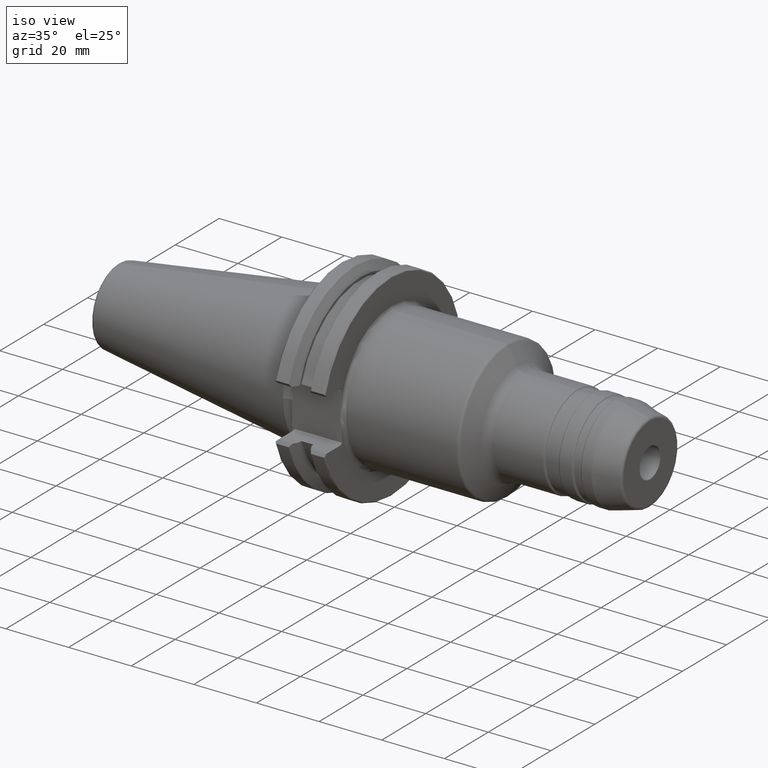
[diagram: clean part render]
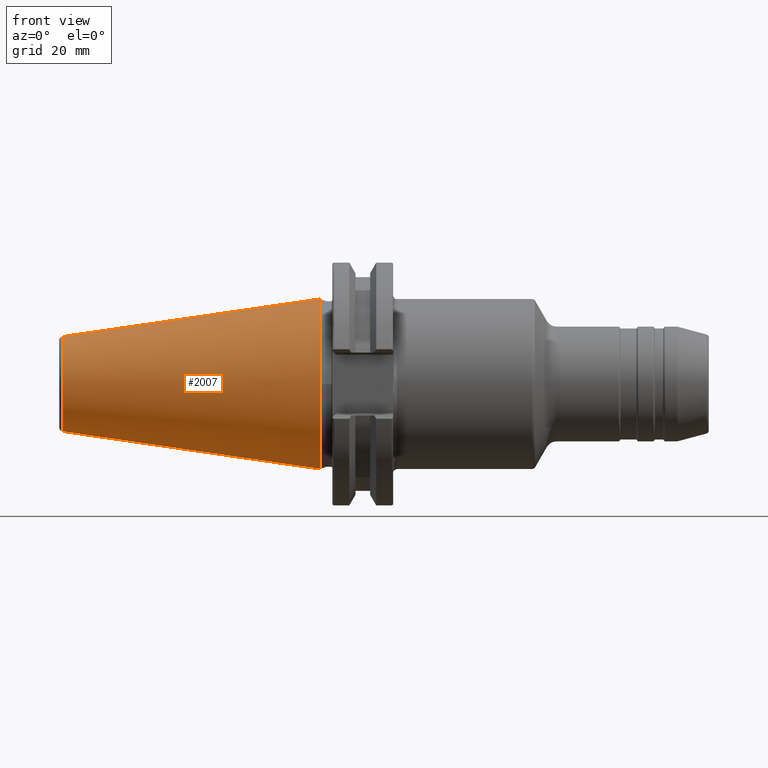
[diagram: tour spotlight — one face highlighted and labeled with its STEP entity id]
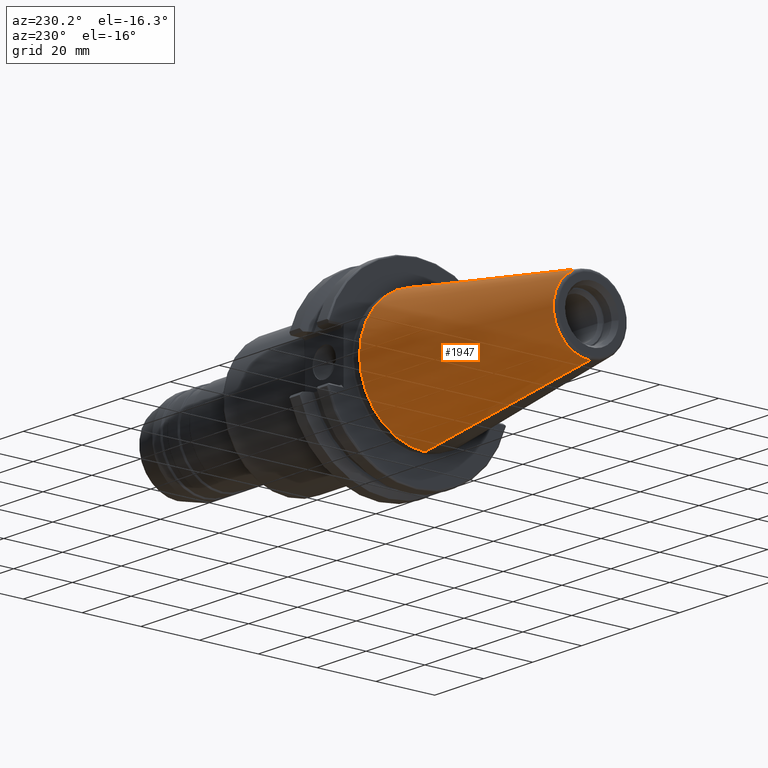
[diagram: tour spotlight — one face highlighted and labeled with its STEP entity id]
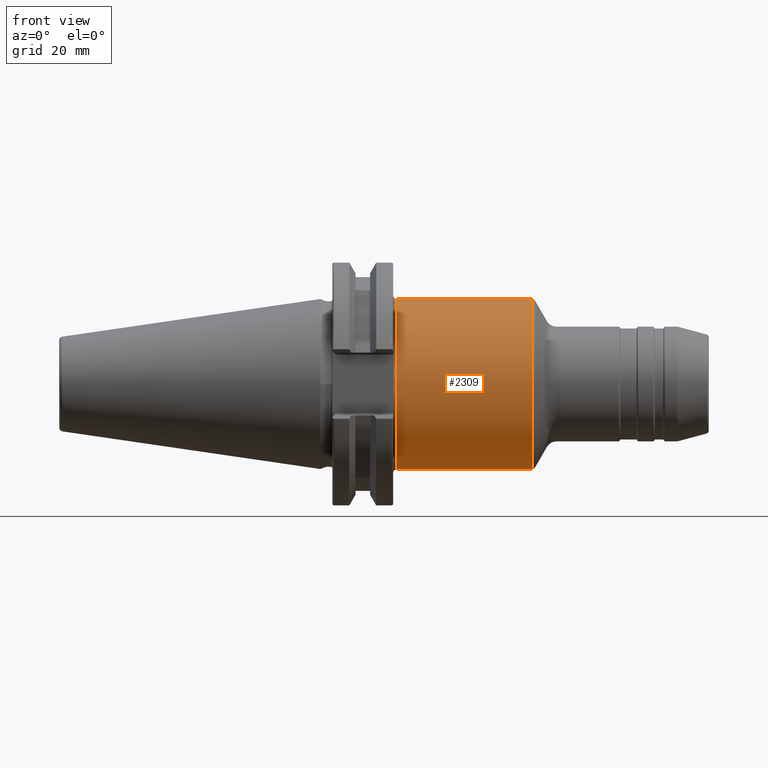
[diagram: tour spotlight — one face highlighted and labeled with its STEP entity id]
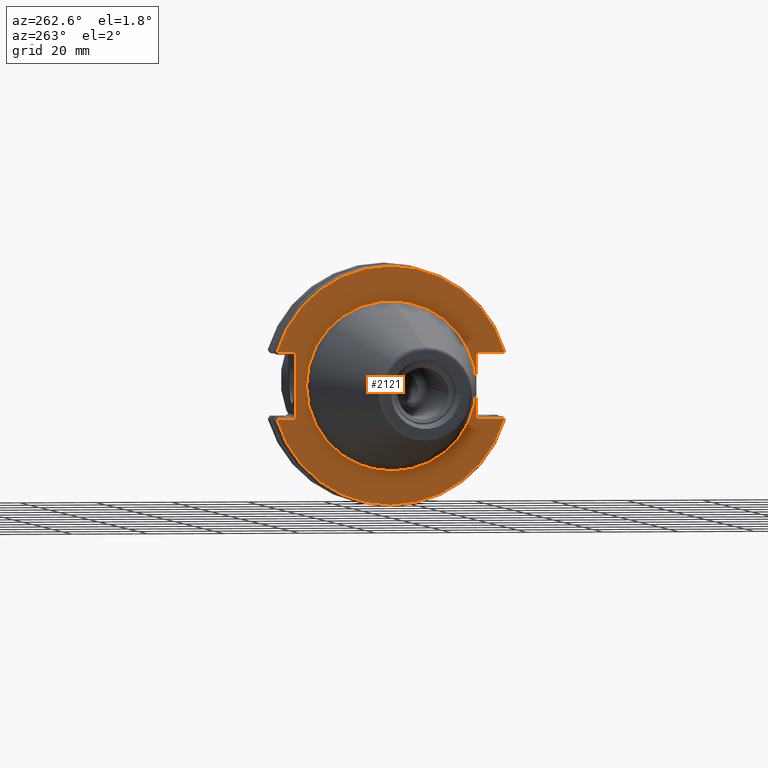
[diagram: tour spotlight — one face highlighted and labeled with its STEP entity id]
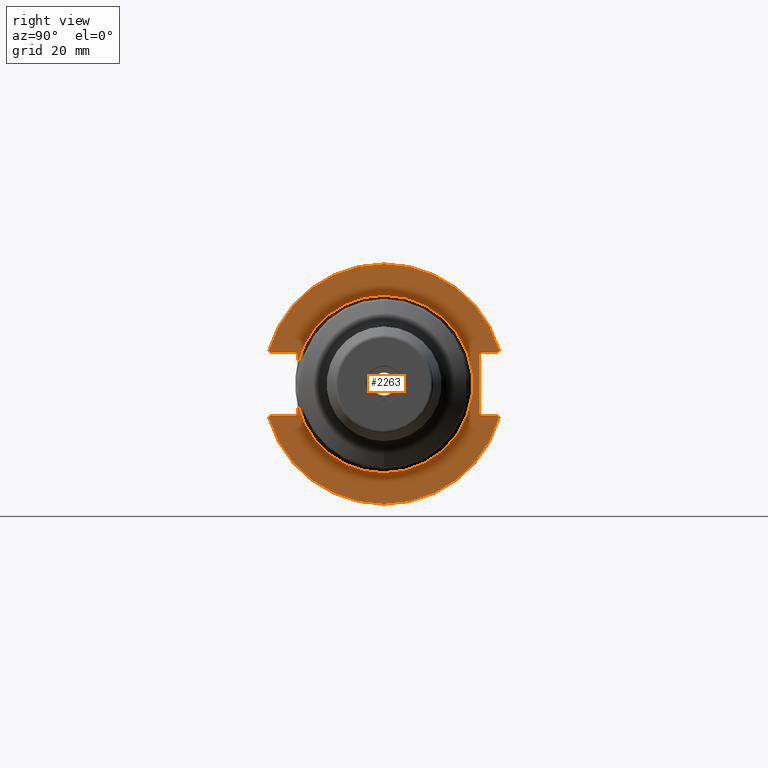
[diagram: tour spotlight — one face highlighted and labeled with its STEP entity id]
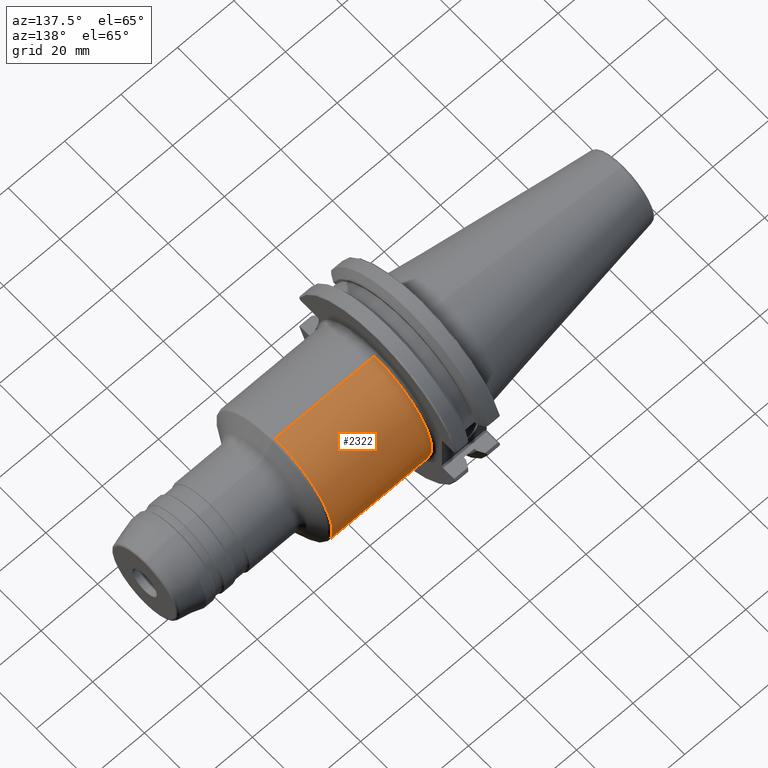
[diagram: tour spotlight — one face highlighted and labeled with its STEP entity id]
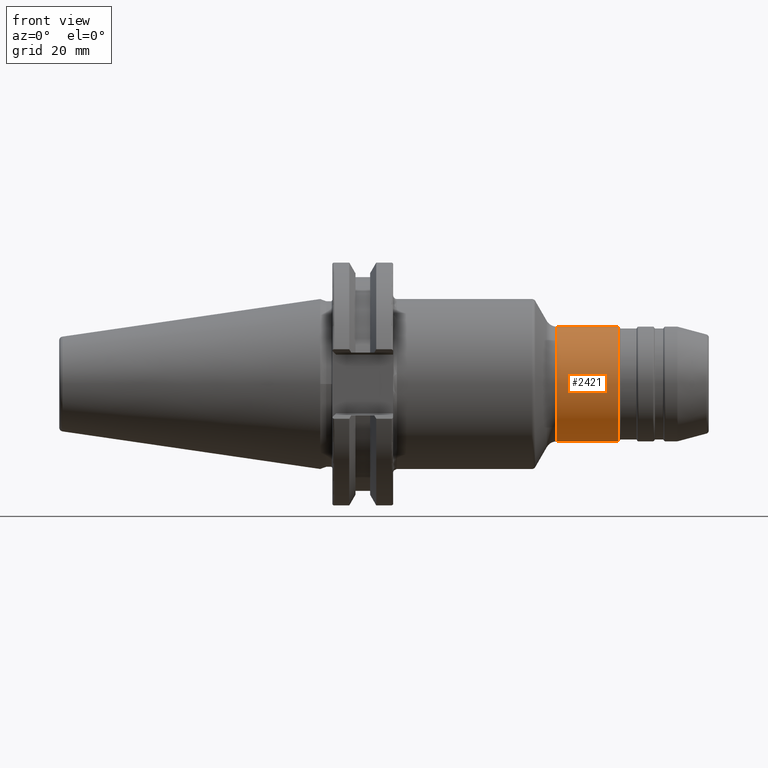
[diagram: tour spotlight — one face highlighted and labeled with its STEP entity id]
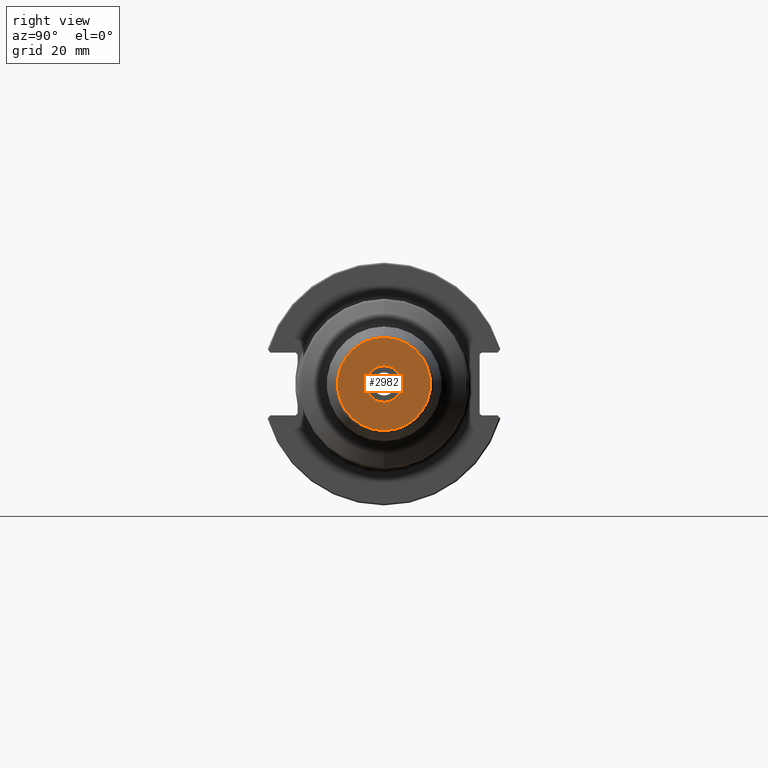
[diagram: tour spotlight — one face highlighted and labeled with its STEP entity id]
A machine part: a face-by-face anatomy tour. The part has 143 B-rep faces; the first image is the clean iso view, then the 8 largest visible faces are spotlighted one at a time (largest first), each with its STEP entity span.

Face 1 — front view, entity #2007. In plain terms, the highlighted conical surface has half-angle 8.297 deg.
Definition (entity closure, byte-faithful):
#47=CARTESIAN_POINT('',(-6.739430689359E1,0.E0,0.E0));
#48=DIRECTION('',(-1.E0,0.E0,0.E0));
#49=DIRECTION('',(0.E0,0.E0,-1.E0));
#50=AXIS2_PLACEMENT_3D('',#47,#48,#49);
#52=DIRECTION('',(-9.895329809873E-1,-1.311327178365E-12,-1.443068935927E-1));
#53=VECTOR('',#52,6.810718610546E1);
#54=CARTESIAN_POINT('',(0.E0,0.E0,2.2225E1));
#55=LINE('',#54,#53);
#56=CARTESIAN_POINT('',(2.557953848736E-13,0.E0,0.E0));
#57=DIRECTION('',(1.E0,0.E0,0.E0));
#58=DIRECTION('',(0.E0,0.E0,1.E0));
#59=AXIS2_PLACEMENT_3D('',#56,#57,#58);
#61=CARTESIAN_POINT('',(-2.842170943040E-14,0.E0,0.E0));
#62=DIRECTION('',(1.E0,0.E0,0.E0));
#63=DIRECTION('',(0.E0,-1.E0,0.E0));
#64=AXIS2_PLACEMENT_3D('',#61,#62,#63);
#66=DIRECTION('',(-9.895329809873E-1,1.311286176267E-12,1.443068935927E-1));
#67=VECTOR('',#66,6.810718610546E1);
#68=CARTESIAN_POINT('',(0.E0,0.E0,-2.2225E1));
#69=LINE('',#68,#67);
#1630=CARTESIAN_POINT('',(-6.739430689359E1,0.E0,-1.239666354178E1));
#1631=CARTESIAN_POINT('',(-6.739430689359E1,0.E0,1.239666354178E1));
#1632=VERTEX_POINT('',#1630);
#1633=VERTEX_POINT('',#1631);
#1646=CARTESIAN_POINT('',(0.E0,-2.2225E1,-1.633863832385E-8));
#1647=VERTEX_POINT('',#1646);
#1650=CARTESIAN_POINT('',(2.557953848736E-13,0.E0,2.2225E1));
#1651=VERTEX_POINT('',#1650);
#1652=CARTESIAN_POINT('',(-2.842170943040E-14,0.E0,-2.2225E1));
#1653=VERTEX_POINT('',#1652);
#1993=CARTESIAN_POINT('',(-3.369715344680E1,0.E0,0.E0));
#1994=DIRECTION('',(1.E0,0.E0,0.E0));
#1995=DIRECTION('',(0.E0,0.E0,1.E0));
#1996=AXIS2_PLACEMENT_3D('',#1993,#1994,#1995);
#1997=CONICAL_SURFACE('',#1996,1.731083177089E1,8.297145E0);
#1998=ORIENTED_EDGE('',*,*,#1987,.T.);
#1999=ORIENTED_EDGE('',*,*,#1943,.F.);
#2001=ORIENTED_EDGE('',*,*,#2000,.T.);
#2003=ORIENTED_EDGE('',*,*,#2002,.T.);
#2004=ORIENTED_EDGE('',*,*,#1937,.T.);
#2005=EDGE_LOOP('',(#1998,#1999,#2001,#2003,#2004));
#2006=FACE_OUTER_BOUND('',#2005,.F.);
#2007=ADVANCED_FACE('',(#2006),#1997,.T.);
#51=CIRCLE('',#50,1.239666354178E1);
#60=CIRCLE('',#59,2.2225E1);
#65=CIRCLE('',#64,2.2225E1);
#1937=EDGE_CURVE('',#1653,#1632,#69,.T.);
#1943=EDGE_CURVE('',#1651,#1633,#55,.T.);
#1987=EDGE_CURVE('',#1632,#1633,#51,.T.);
#2000=EDGE_CURVE('',#1651,#1647,#60,.T.);
#2002=EDGE_CURVE('',#1647,#1653,#65,.T.);

Face 2 — auxiliary view, entity #1947. In plain terms, the highlighted conical surface has half-angle 8.297 deg.
Definition (entity closure, byte-faithful):
#2=CARTESIAN_POINT('',(-6.739430689359E1,0.E0,0.E0));
#3=DIRECTION('',(-1.E0,0.E0,0.E0));
#4=DIRECTION('',(0.E0,0.E0,1.E0));
#5=AXIS2_PLACEMENT_3D('',#2,#3,#4);
#7=CARTESIAN_POINT('',(-2.842170943040E-14,0.E0,0.E0));
#8=DIRECTION('',(1.E0,0.E0,0.E0));
#9=DIRECTION('',(0.E0,0.E0,-1.E0));
#10=AXIS2_PLACEMENT_3D('',#7,#8,#9);
#12=CARTESIAN_POINT('',(2.557953848736E-13,0.E0,0.E0));
#13=DIRECTION('',(1.E0,0.E0,0.E0));
#14=DIRECTION('',(0.E0,1.E0,0.E0));
#15=AXIS2_PLACEMENT_3D('',#12,#13,#14);
#52=DIRECTION('',(-9.895329809873E-1,-1.311327178365E-12,-1.443068935927E-1));
#53=VECTOR('',#52,6.810718610546E1);
#54=CARTESIAN_POINT('',(0.E0,0.E0,2.2225E1));
#55=LINE('',#54,#53);
#66=DIRECTION('',(-9.895329809873E-1,1.311286176267E-12,1.443068935927E-1));
#67=VECTOR('',#66,6.810718610546E1);
#68=CARTESIAN_POINT('',(0.E0,0.E0,-2.2225E1));
#69=LINE('',#68,#67);
#1630=CARTESIAN_POINT('',(-6.739430689359E1,0.E0,-1.239666354178E1));
#1631=CARTESIAN_POINT('',(-6.739430689359E1,0.E0,1.239666354178E1));
#1632=VERTEX_POINT('',#1630);
#1633=VERTEX_POINT('',#1631);
#1648=CARTESIAN_POINT('',(0.E0,2.2225E1,1.633863672682E-8));
#1649=VERTEX_POINT('',#1648);
#1650=CARTESIAN_POINT('',(2.557953848736E-13,0.E0,2.2225E1));
#1651=VERTEX_POINT('',#1650);
#1652=CARTESIAN_POINT('',(-2.842170943040E-14,0.E0,-2.2225E1));
#1653=VERTEX_POINT('',#1652);
#1930=CARTESIAN_POINT('',(-3.369715344680E1,0.E0,0.E0));
#1931=DIRECTION('',(1.E0,0.E0,0.E0));
#1932=DIRECTION('',(0.E0,0.E0,1.E0));
#1933=AXIS2_PLACEMENT_3D('',#1930,#1931,#1932);
#1934=CONICAL_SURFACE('',#1933,1.731083177089E1,8.297145E0);
#1936=ORIENTED_EDGE('',*,*,#1935,.T.);
#1938=ORIENTED_EDGE('',*,*,#1937,.F.);
#1940=ORIENTED_EDGE('',*,*,#1939,.T.);
#1942=ORIENTED_EDGE('',*,*,#1941,.T.);
#1944=ORIENTED_EDGE('',*,*,#1943,.T.);
#1945=EDGE_LOOP('',(#1936,#1938,#1940,#1942,#1944));
#1946=FACE_OUTER_BOUND('',#1945,.F.);
#1947=ADVANCED_FACE('',(#1946),#1934,.T.);
#6=CIRCLE('',#5,1.239666354178E1);
#11=CIRCLE('',#10,2.2225E1);
#16=CIRCLE('',#15,2.2225E1);
#1935=EDGE_CURVE('',#1633,#1632,#6,.T.);
#1937=EDGE_CURVE('',#1653,#1632,#69,.T.);
#1939=EDGE_CURVE('',#1653,#1649,#11,.T.);
#1941=EDGE_CURVE('',#1649,#1651,#16,.T.);
#1943=EDGE_CURVE('',#1651,#1633,#55,.T.);

Face 3 — front view, entity #2309. In plain terms, the highlighted cylindrical surface (partial cylindrical patch) has radius 22.225 mm, axis along (1, 0, 0).
Definition (entity closure, byte-faithful):
#227=CARTESIAN_POINT('',(2.0075E1,0.E0,0.E0));
#228=DIRECTION('',(-1.E0,0.E0,0.E0));
#229=DIRECTION('',(0.E0,0.E0,-1.E0));
#230=AXIS2_PLACEMENT_3D('',#227,#228,#229);
#237=DIRECTION('',(-1.E0,0.E0,0.E0));
#238=VECTOR('',#237,3.530129403591E1);
#239=CARTESIAN_POINT('',(5.537629403591E1,0.E0,-2.2225E1));
#240=LINE('',#239,#238);
#241=DIRECTION('',(-1.E0,0.E0,0.E0));
#242=VECTOR('',#241,3.530129403591E1);
#243=CARTESIAN_POINT('',(5.537629403591E1,0.E0,2.2225E1));
#244=LINE('',#243,#242);
#245=CARTESIAN_POINT('',(5.537629403591E1,0.E0,0.E0));
#246=DIRECTION('',(-1.E0,0.E0,0.E0));
#247=DIRECTION('',(0.E0,0.E0,-1.E0));
#248=AXIS2_PLACEMENT_3D('',#245,#246,#247);
#1844=CARTESIAN_POINT('',(5.537629403591E1,0.E0,-2.2225E1));
#1845=VERTEX_POINT('',#1844);
#1846=CARTESIAN_POINT('',(2.0075E1,0.E0,-2.2225E1));
#1847=VERTEX_POINT('',#1846);
#1910=CARTESIAN_POINT('',(5.537629403591E1,0.E0,2.2225E1));
#1911=VERTEX_POINT('',#1910);
#1912=CARTESIAN_POINT('',(2.0075E1,0.E0,2.2225E1));
#1913=VERTEX_POINT('',#1912);
#2295=CARTESIAN_POINT('',(1.49475E1,0.E0,0.E0));
#2296=DIRECTION('',(1.E0,0.E0,0.E0));
#2297=DIRECTION('',(0.E0,0.E0,1.E0));
#2298=AXIS2_PLACEMENT_3D('',#2295,#2296,#2297);
#2299=CYLINDRICAL_SURFACE('',#2298,2.2225E1);
#2301=ORIENTED_EDGE('',*,*,#2300,.T.);
#2302=ORIENTED_EDGE('',*,*,#2286,.T.);
#2304=ORIENTED_EDGE('',*,*,#2303,.F.);
#2306=ORIENTED_EDGE('',*,*,#2305,.F.);
#2307=EDGE_LOOP('',(#2301,#2302,#2304,#2306));
#2308=FACE_OUTER_BOUND('',#2307,.F.);
#2309=ADVANCED_FACE('',(#2308),#2299,.T.);
#231=CIRCLE('',#230,2.2225E1);
#249=CIRCLE('',#248,2.2225E1);
#2286=EDGE_CURVE('',#1847,#1913,#231,.T.);
#2300=EDGE_CURVE('',#1845,#1847,#240,.T.);
#2303=EDGE_CURVE('',#1911,#1913,#244,.T.);
#2305=EDGE_CURVE('',#1845,#1911,#249,.T.);

Face 4 — auxiliary view, entity #2121. In plain terms, the highlighted planar face has unit normal (1, 0, 0).
Definition (entity closure, byte-faithful):
#116=CARTESIAN_POINT('',(3.175E0,0.E0,0.E0));
#117=DIRECTION('',(1.E0,0.E0,0.E0));
#118=DIRECTION('',(0.E0,1.E0,0.E0));
#119=AXIS2_PLACEMENT_3D('',#116,#117,#118);
#121=CARTESIAN_POINT('',(3.175E0,0.E0,0.E0));
#122=DIRECTION('',(1.E0,0.E0,0.E0));
#123=DIRECTION('',(0.E0,-1.E0,0.E0));
#124=AXIS2_PLACEMENT_3D('',#121,#122,#123);
#126=DIRECTION('',(-4.416490716681E-7,-9.999999999998E-1,-4.416327437506E-7));
#127=VECTOR('',#126,5.017433816154E0);
#128=CARTESIAN_POINT('',(3.175002215945E0,3.001743381615E1,8.690002215863E0));
#129=LINE('',#128,#127);
#130=DIRECTION('',(2.987481982108E-7,-9.999999999999E-1,2.987371537468E-7));
#131=VECTOR('',#130,7.417433816239E0);
#132=CARTESIAN_POINT('',(3.175E0,-2.26E1,8.69E0));
#133=LINE('',#132,#131);
#134=DIRECTION('',(-2.987481980911E-7,9.999999999999E-1,2.987371530284E-7));
#135=VECTOR('',#134,7.417433816238E0);
#136=CARTESIAN_POINT('',(3.175002215945E0,-3.001743381624E1,-8.690002215863E0));
#137=LINE('',#136,#135);
#138=DIRECTION('',(4.416490717585E-7,9.999999999998E-1,-4.416327437526E-7));
#139=VECTOR('',#138,5.017433816133E0);
#140=CARTESIAN_POINT('',(3.175E0,2.5E1,-8.69E0));
#141=LINE('',#140,#139);
#168=DIRECTION('',(0.E0,0.E0,-1.E0));
#169=VECTOR('',#168,1.738E1);
#170=CARTESIAN_POINT('',(3.175E0,2.5E1,8.69E0));
#171=LINE('',#170,#169);
#958=DIRECTION('',(0.E0,0.E0,1.E0));
#959=VECTOR('',#958,1.738E1);
#960=CARTESIAN_POINT('',(3.175E0,-2.26E1,-8.69E0));
#961=LINE('',#960,#959);
#1084=CARTESIAN_POINT('',(3.175E0,0.E0,0.E0));
#1085=DIRECTION('',(-1.E0,0.E0,0.E0));
#1086=DIRECTION('',(0.E0,9.605579196518E-1,-2.780799938762E-1));
#1087=AXIS2_PLACEMENT_3D('',#1084,#1085,#1086);
#1156=CARTESIAN_POINT('',(3.175E0,0.E0,0.E0));
#1157=DIRECTION('',(-1.E0,0.E0,0.E0));
#1158=DIRECTION('',(0.E0,-9.605579196529E-1,2.780799938725E-1));
#1159=AXIS2_PLACEMENT_3D('',#1156,#1157,#1158);
#1638=CARTESIAN_POINT('',(3.175E0,2.22E1,0.E0));
#1639=CARTESIAN_POINT('',(3.175E0,-2.22E1,0.E0));
#1640=VERTEX_POINT('',#1638);
#1641=VERTEX_POINT('',#1639);
#1694=CARTESIAN_POINT('',(3.175002215945E0,3.001743381615E1,8.690002215863E0));
#1695=CARTESIAN_POINT('',(3.175E0,2.5E1,8.69E0));
#1696=VERTEX_POINT('',#1694);
#1697=VERTEX_POINT('',#1695);
#1702=CARTESIAN_POINT('',(3.175E0,2.5E1,-8.69E0));
#1703=CARTESIAN_POINT('',(3.175002215945E0,3.001743381613E1,-8.690002215863E0));
#1704=VERTEX_POINT('',#1702);
#1705=VERTEX_POINT('',#1703);
#1710=CARTESIAN_POINT('',(3.175E0,-2.26E1,8.69E0));
#1711=CARTESIAN_POINT('',(3.175002215945E0,-3.001743381624E1,8.690002215863E0));
#1712=VERTEX_POINT('',#1710);
#1713=VERTEX_POINT('',#1711);
#1718=CARTESIAN_POINT('',(3.175002215945E0,-3.001743381624E1,
-8.690002215863E0));
#1719=CARTESIAN_POINT('',(3.175E0,-2.26E1,-8.69E0));
#1720=VERTEX_POINT('',#1718);
#1721=VERTEX_POINT('',#1719);
#2094=CARTESIAN_POINT('',(3.175E0,0.E0,0.E0));
#2095=DIRECTION('',(1.E0,0.E0,0.E0));
#2096=DIRECTION('',(0.E0,0.E0,1.E0));
#2097=AXIS2_PLACEMENT_3D('',#2094,#2095,#2096);
#2098=PLANE('',#2097);
#2100=ORIENTED_EDGE('',*,*,#2099,.F.);
#2102=ORIENTED_EDGE('',*,*,#2101,.F.);
#2104=ORIENTED_EDGE('',*,*,#2103,.F.);
#2106=ORIENTED_EDGE('',*,*,#2105,.F.);
#2108=ORIENTED_EDGE('',*,*,#2107,.F.);
#2110=ORIENTED_EDGE('',*,*,#2109,.F.);
#2112=ORIENTED_EDGE('',*,*,#2111,.F.);
#2114=ORIENTED_EDGE('',*,*,#2113,.F.);
#2115=EDGE_LOOP('',(#2100,#2102,#2104,#2106,#2108,#2110,#2112,#2114));
#2116=FACE_OUTER_BOUND('',#2115,.F.);
#2117=ORIENTED_EDGE('',*,*,#2047,.F.);
#2118=ORIENTED_EDGE('',*,*,#2062,.F.);
#2119=EDGE_LOOP('',(#2117,#2118));
#2120=FACE_BOUND('',#2119,.F.);
#2121=ADVANCED_FACE('',(#2116,#2120),#2098,.F.);
#120=CIRCLE('',#119,2.22E1);
#125=CIRCLE('',#124,2.22E1);
#1088=CIRCLE('',#1087,3.125E1);
#1160=CIRCLE('',#1159,3.125E1);
#2047=EDGE_CURVE('',#1640,#1641,#120,.T.);
#2062=EDGE_CURVE('',#1641,#1640,#125,.T.);
#2099=EDGE_CURVE('',#1696,#1697,#129,.T.);
#2101=EDGE_CURVE('',#1713,#1696,#1160,.T.);
#2103=EDGE_CURVE('',#1712,#1713,#133,.T.);
#2105=EDGE_CURVE('',#1721,#1712,#961,.T.);
#2107=EDGE_CURVE('',#1720,#1721,#137,.T.);
#2109=EDGE_CURVE('',#1705,#1720,#1088,.T.);
#2111=EDGE_CURVE('',#1704,#1705,#141,.T.);
#2113=EDGE_CURVE('',#1697,#1704,#171,.T.);

Face 5 — right view, entity #2263. In plain terms, the highlighted planar face has unit normal (-1, 0, 0).
Definition (entity closure, byte-faithful):
#160=DIRECTION('',(0.E0,0.E0,-1.E0));
#161=VECTOR('',#160,1.538E1);
#162=CARTESIAN_POINT('',(1.9075E1,2.5E1,7.69E0));
#163=LINE('',#162,#161);
#202=CARTESIAN_POINT('',(1.9075E1,0.E0,0.E0));
#203=DIRECTION('',(1.E0,0.E0,0.E0));
#204=DIRECTION('',(0.E0,0.E0,-1.E0));
#205=AXIS2_PLACEMENT_3D('',#202,#203,#204);
#207=CARTESIAN_POINT('',(1.9075E1,0.E0,0.E0));
#208=DIRECTION('',(1.E0,0.E0,0.E0));
#209=DIRECTION('',(0.E0,0.E0,1.E0));
#210=AXIS2_PLACEMENT_3D('',#207,#208,#209);
#212=CARTESIAN_POINT('',(1.9075E1,0.E0,0.E0));
#213=DIRECTION('',(1.E0,0.E0,0.E0));
#214=DIRECTION('',(0.E0,-9.730893433800E-1,-2.304281445491E-1));
#215=AXIS2_PLACEMENT_3D('',#212,#213,#214);
#950=DIRECTION('',(2.430965425577E-14,5.087190184901E-10,-1.E0));
#951=VECTOR('',#950,2.338306347871E0);
#952=CARTESIAN_POINT('',(1.9075E1,-2.260000000119E1,-5.351693652129E0));
#953=LINE('',#952,#951);
#966=DIRECTION('',(-2.430965430317E-14,-4.692067151191E-11,-1.E0));
#967=VECTOR('',#966,2.338306343311E0);
#968=CARTESIAN_POINT('',(1.9075E1,-2.26E1,7.69E0));
#969=LINE('',#968,#967);
#970=DIRECTION('',(0.E0,-7.071067811865E-1,-7.071067811865E-1));
#971=VECTOR('',#970,7.071067811865E-1);
#972=CARTESIAN_POINT('',(1.9075E1,-2.26E1,-7.69E0));
#973=LINE('',#972,#971);
#978=DIRECTION('',(0.E0,1.E0,0.E0));
#979=VECTOR('',#978,6.650132772813E0);
#980=CARTESIAN_POINT('',(1.9075E1,-2.975013277281E1,-8.19E0));
#981=LINE('',#980,#979);
#998=DIRECTION('',(0.E0,-5.973640433789E-1,-8.019701987468E-1));
#999=VECTOR('',#998,6.967374391763E-1);
#1000=CARTESIAN_POINT('',(1.9075E1,-2.975013277281E1,-8.19E0));
#1001=LINE('',#1000,#999);
#1009=CARTESIAN_POINT('',(1.9075E1,0.E0,0.E0));
#1010=DIRECTION('',(1.E0,0.E0,0.E0));
#1011=DIRECTION('',(0.E0,-9.604246720989E-1,-2.785398521286E-1));
#1012=AXIS2_PLACEMENT_3D('',#1009,#1010,#1011);
#1031=DIRECTION('',(0.E0,-5.973640433790E-1,8.019701987468E-1));
#1032=VECTOR('',#1031,6.967374391763E-1);
#1033=CARTESIAN_POINT('',(1.9075E1,3.016633866665E1,-8.748762662571E0));
#1034=LINE('',#1033,#1032);
#1042=DIRECTION('',(0.E0,1.E0,0.E0));
#1043=VECTOR('',#1042,4.250132772813E0);
#1044=CARTESIAN_POINT('',(1.9075E1,2.55E1,-8.19E0));
#1045=LINE('',#1044,#1043);
#1062=DIRECTION('',(0.E0,7.071067811865E-1,-7.071067811866E-1));
#1063=VECTOR('',#1062,7.071067811866E-1);
#1064=CARTESIAN_POINT('',(1.9075E1,2.5E1,-7.69E0));
#1065=LINE('',#1064,#1063);
#1198=DIRECTION('',(0.E0,1.E0,0.E0));
#1199=VECTOR('',#1198,6.650132772813E0);
#1200=CARTESIAN_POINT('',(1.9075E1,-2.975013277281E1,8.19E0));
#1201=LINE('',#1200,#1199);
#1218=DIRECTION('',(0.E0,-7.071067811865E-1,7.071067811865E-1));
#1219=VECTOR('',#1218,7.071067811865E-1);
#1220=CARTESIAN_POINT('',(1.9075E1,-2.26E1,7.69E0));
#1221=LINE('',#1220,#1219);
#1316=DIRECTION('',(0.E0,1.E0,0.E0));
#1317=VECTOR('',#1316,4.250132772813E0);
#1318=CARTESIAN_POINT('',(1.9075E1,2.55E1,8.19E0));
#1319=LINE('',#1318,#1317);
#1336=DIRECTION('',(0.E0,5.973640433790E-1,8.019701987468E-1));
#1337=VECTOR('',#1336,6.967374391763E-1);
#1338=CARTESIAN_POINT('',(1.9075E1,2.975013277281E1,8.19E0));
#1339=LINE('',#1338,#1337);
#1347=CARTESIAN_POINT('',(1.9075E1,0.E0,0.E0));
#1348=DIRECTION('',(1.E0,0.E0,0.E0));
#1349=DIRECTION('',(0.E0,9.604246720989E-1,2.785398521286E-1));
#1350=AXIS2_PLACEMENT_3D('',#1347,#1348,#1349);
#1369=DIRECTION('',(0.E0,5.973640433790E-1,-8.019701987468E-1));
#1370=VECTOR('',#1369,6.967374391763E-1);
#1371=CARTESIAN_POINT('',(1.9075E1,-3.016633866665E1,8.748762662571E0));
#1372=LINE('',#1371,#1370);
#1525=DIRECTION('',(0.E0,7.071067811865E-1,7.071067811865E-1));
#1526=VECTOR('',#1525,7.071067811865E-1);
#1527=CARTESIAN_POINT('',(1.9075E1,2.5E1,7.69E0));
#1528=LINE('',#1527,#1526);
#1742=CARTESIAN_POINT('',(1.9075E1,2.5E1,7.69E0));
#1743=CARTESIAN_POINT('',(1.9075E1,2.5E1,-7.69E0));
#1744=VERTEX_POINT('',#1742);
#1745=VERTEX_POINT('',#1743);
#1746=CARTESIAN_POINT('',(1.9075E1,2.55E1,8.19E0));
#1747=CARTESIAN_POINT('',(1.9075E1,2.975013277281E1,8.19E0));
#1748=VERTEX_POINT('',#1746);
#1749=VERTEX_POINT('',#1747);
#1750=CARTESIAN_POINT('',(1.9075E1,2.55E1,-8.19E0));
#1751=CARTESIAN_POINT('',(1.9075E1,2.975013277281E1,-8.19E0));
#1752=VERTEX_POINT('',#1750);
#1753=VERTEX_POINT('',#1751);
#1754=CARTESIAN_POINT('',(1.9075E1,-2.975013277281E1,8.19E0));
#1755=CARTESIAN_POINT('',(1.9075E1,-2.31E1,8.19E0));
#1756=VERTEX_POINT('',#1754);
#1757=VERTEX_POINT('',#1755);
#1758=CARTESIAN_POINT('',(1.9075E1,-2.975013277281E1,-8.19E0));
#1759=CARTESIAN_POINT('',(1.9075E1,-2.31E1,-8.19E0));
#1760=VERTEX_POINT('',#1758);
#1761=VERTEX_POINT('',#1759);
#1762=CARTESIAN_POINT('',(1.9075E1,3.016633866665E1,8.748762662570E0));
#1763=VERTEX_POINT('',#1762);
#1764=CARTESIAN_POINT('',(1.9075E1,3.016633866665E1,-8.748762662571E0));
#1765=VERTEX_POINT('',#1764);
#1766=CARTESIAN_POINT('',(1.9075E1,-3.016633866665E1,8.748762662571E0));
#1767=VERTEX_POINT('',#1766);
#1768=CARTESIAN_POINT('',(1.9075E1,-3.016633866665E1,-8.748762662571E0));
#1769=VERTEX_POINT('',#1768);
#1770=CARTESIAN_POINT('',(1.9075E1,-2.26E1,-7.69E0));
#1771=VERTEX_POINT('',#1770);
#1772=CARTESIAN_POINT('',(1.9075E1,-2.26E1,7.69E0));
#1773=VERTEX_POINT('',#1772);
#1914=CARTESIAN_POINT('',(1.9075E1,-2.260000000011E1,5.351693656689E0));
#1915=CARTESIAN_POINT('',(1.9075E1,-2.260000000119E1,-5.351693652129E0));
#1916=VERTEX_POINT('',#1914);
#1917=VERTEX_POINT('',#1915);
#1922=CARTESIAN_POINT('',(1.9075E1,0.E0,-2.3225E1));
#1923=CARTESIAN_POINT('',(1.9075E1,0.E0,2.3225E1));
#1924=VERTEX_POINT('',#1922);
#1925=VERTEX_POINT('',#1923);
#2217=CARTESIAN_POINT('',(1.9075E1,-5.E1,-5.E1));
#2218=DIRECTION('',(-1.E0,0.E0,0.E0));
#2219=DIRECTION('',(0.E0,0.E0,1.E0));
#2220=AXIS2_PLACEMENT_3D('',#2217,#2218,#2219);
#2221=PLANE('',#2220);
#2223=ORIENTED_EDGE('',*,*,#2222,.T.);
#2225=ORIENTED_EDGE('',*,*,#2224,.T.);
#2227=ORIENTED_EDGE('',*,*,#2226,.F.);
#2229=ORIENTED_EDGE('',*,*,#2228,.T.);
#2231=ORIENTED_EDGE('',*,*,#2230,.F.);
#2233=ORIENTED_EDGE('',*,*,#2232,.F.);
#2235=ORIENTED_EDGE('',*,*,#2234,.F.);
#2237=ORIENTED_EDGE('',*,*,#2236,.F.);
#2239=ORIENTED_EDGE('',*,*,#2238,.F.);
#2241=ORIENTED_EDGE('',*,*,#2240,.F.);
#2242=ORIENTED_EDGE('',*,*,#2146,.T.);
#2244=ORIENTED_EDGE('',*,*,#2243,.T.);
#2246=ORIENTED_EDGE('',*,*,#2245,.T.);
#2248=ORIENTED_EDGE('',*,*,#2247,.F.);
#2250=ORIENTED_EDGE('',*,*,#2249,.F.);
#2252=ORIENTED_EDGE('',*,*,#2251,.F.);
#2254=ORIENTED_EDGE('',*,*,#2253,.T.);
#2256=ORIENTED_EDGE('',*,*,#2255,.F.);
#2258=ORIENTED_EDGE('',*,*,#2257,.F.);
#2260=ORIENTED_EDGE('',*,*,#2259,.T.);
#2261=EDGE_LOOP('',(#2223,#2225,#2227,#2229,#2231,#2233,#2235,#2237,#2239,#2241,
#2242,#2244,#2246,#2248,#2250,#2252,#2254,#2256,#2258,#2260));
#2262=FACE_OUTER_BOUND('',#2261,.F.);
#2263=ADVANCED_FACE('',(#2262),#2221,.F.);
#206=CIRCLE('',#205,2.3225E1);
#211=CIRCLE('',#210,2.322500010117E1);
#216=CIRCLE('',#215,2.322500010190E1);
#1013=CIRCLE('',#1012,3.140937498068E1);
#1351=CIRCLE('',#1350,3.140937498068E1);
#2146=EDGE_CURVE('',#1744,#1745,#163,.T.);
#2222=EDGE_CURVE('',#1924,#1925,#206,.T.);
#2224=EDGE_CURVE('',#1925,#1916,#211,.T.);
#2226=EDGE_CURVE('',#1773,#1916,#969,.T.);
#2228=EDGE_CURVE('',#1773,#1757,#1221,.T.);
#2230=EDGE_CURVE('',#1756,#1757,#1201,.T.);
#2232=EDGE_CURVE('',#1767,#1756,#1372,.T.);
#2234=EDGE_CURVE('',#1763,#1767,#1351,.T.);
#2236=EDGE_CURVE('',#1749,#1763,#1339,.T.);
#2238=EDGE_CURVE('',#1748,#1749,#1319,.T.);
#2240=EDGE_CURVE('',#1744,#1748,#1528,.T.);
#2243=EDGE_CURVE('',#1745,#1752,#1065,.T.);
#2245=EDGE_CURVE('',#1752,#1753,#1045,.T.);
#2247=EDGE_CURVE('',#1765,#1753,#1034,.T.);
#2249=EDGE_CURVE('',#1769,#1765,#1013,.T.);
#2251=EDGE_CURVE('',#1760,#1769,#1001,.T.);
#2253=EDGE_CURVE('',#1760,#1761,#981,.T.);
#2255=EDGE_CURVE('',#1771,#1761,#973,.T.);
#2257=EDGE_CURVE('',#1917,#1771,#953,.T.);
#2259=EDGE_CURVE('',#1917,#1924,#216,.T.);

Face 6 — auxiliary view, entity #2322. In plain terms, the highlighted cylindrical surface (partial cylindrical patch) has radius 22.225 mm, axis along (1, 0, 0).
Definition (entity closure, byte-faithful):
#217=CARTESIAN_POINT('',(2.0075E1,0.E0,0.E0));
#218=DIRECTION('',(1.E0,0.E0,0.E0));
#219=DIRECTION('',(0.E0,0.E0,-1.E0));
#220=AXIS2_PLACEMENT_3D('',#217,#218,#219);
#237=DIRECTION('',(-1.E0,0.E0,0.E0));
#238=VECTOR('',#237,3.530129403591E1);
#239=CARTESIAN_POINT('',(5.537629403591E1,0.E0,-2.2225E1));
#240=LINE('',#239,#238);
#241=DIRECTION('',(-1.E0,0.E0,0.E0));
#242=VECTOR('',#241,3.530129403591E1);
#243=CARTESIAN_POINT('',(5.537629403591E1,0.E0,2.2225E1));
#244=LINE('',#243,#242);
#250=CARTESIAN_POINT('',(5.537629403591E1,0.E0,0.E0));
#251=DIRECTION('',(1.E0,0.E0,0.E0));
#252=DIRECTION('',(0.E0,0.E0,-1.E0));
#253=AXIS2_PLACEMENT_3D('',#250,#251,#252);
#1844=CARTESIAN_POINT('',(5.537629403591E1,0.E0,-2.2225E1));
#1845=VERTEX_POINT('',#1844);
#1846=CARTESIAN_POINT('',(2.0075E1,0.E0,-2.2225E1));
#1847=VERTEX_POINT('',#1846);
#1910=CARTESIAN_POINT('',(5.537629403591E1,0.E0,2.2225E1));
#1911=VERTEX_POINT('',#1910);
#1912=CARTESIAN_POINT('',(2.0075E1,0.E0,2.2225E1));
#1913=VERTEX_POINT('',#1912);
#2310=CARTESIAN_POINT('',(1.49475E1,0.E0,0.E0));
#2311=DIRECTION('',(1.E0,0.E0,0.E0));
#2312=DIRECTION('',(0.E0,0.E0,1.E0));
#2313=AXIS2_PLACEMENT_3D('',#2310,#2311,#2312);
#2314=CYLINDRICAL_SURFACE('',#2313,2.2225E1);
#2315=ORIENTED_EDGE('',*,*,#2300,.F.);
#2317=ORIENTED_EDGE('',*,*,#2316,.T.);
#2318=ORIENTED_EDGE('',*,*,#2303,.T.);
#2319=ORIENTED_EDGE('',*,*,#2272,.F.);
#2320=EDGE_LOOP('',(#2315,#2317,#2318,#2319));
#2321=FACE_OUTER_BOUND('',#2320,.F.);
#2322=ADVANCED_FACE('',(#2321),#2314,.T.);
#221=CIRCLE('',#220,2.2225E1);
#254=CIRCLE('',#253,2.2225E1);
#2272=EDGE_CURVE('',#1847,#1913,#221,.T.);
#2300=EDGE_CURVE('',#1845,#1847,#240,.T.);
#2303=EDGE_CURVE('',#1911,#1913,#244,.T.);
#2316=EDGE_CURVE('',#1845,#1911,#254,.T.);

Face 7 — front view, entity #2421. In plain terms, the highlighted cylindrical surface (partial cylindrical patch) has radius 15 mm, axis along (1, 0, 0).
Definition (entity closure, byte-faithful):
#308=CARTESIAN_POINT('',(6.185705080757E1,0.E0,0.E0));
#309=DIRECTION('',(-1.E0,0.E0,0.E0));
#310=DIRECTION('',(0.E0,0.E0,-1.E0));
#311=AXIS2_PLACEMENT_3D('',#308,#309,#310);
#313=DIRECTION('',(-1.E0,0.E0,0.E0));
#314=VECTOR('',#313,1.613286389632E1);
#315=CARTESIAN_POINT('',(7.798991470389E1,0.E0,-1.5E1));
#316=LINE('',#315,#314);
#317=DIRECTION('',(-1.E0,0.E0,0.E0));
#318=VECTOR('',#317,1.613286389632E1);
#319=CARTESIAN_POINT('',(7.798991470389E1,0.E0,1.5E1));
#320=LINE('',#319,#318);
#321=CARTESIAN_POINT('',(7.798991470389E1,0.E0,0.E0));
#322=DIRECTION('',(-1.E0,0.E0,0.E0));
#323=DIRECTION('',(0.E0,0.E0,-1.E0));
#324=AXIS2_PLACEMENT_3D('',#321,#322,#323);
#1836=CARTESIAN_POINT('',(7.798991470389E1,0.E0,-1.5E1));
#1837=VERTEX_POINT('',#1836);
#1838=CARTESIAN_POINT('',(6.185705080757E1,0.E0,-1.5E1));
#1839=VERTEX_POINT('',#1838);
#1902=CARTESIAN_POINT('',(7.798991470389E1,0.E0,1.5E1));
#1903=VERTEX_POINT('',#1902);
#1904=CARTESIAN_POINT('',(6.185705080757E1,0.E0,1.5E1));
#1905=VERTEX_POINT('',#1904);
#2407=CARTESIAN_POINT('',(1.49475E1,0.E0,0.E0));
#2408=DIRECTION('',(1.E0,0.E0,0.E0));
#2409=DIRECTION('',(0.E0,0.E0,1.E0));
#2410=AXIS2_PLACEMENT_3D('',#2407,#2408,#2409);
#2411=CYLINDRICAL_SURFACE('',#2410,1.5E1);
#2413=ORIENTED_EDGE('',*,*,#2412,.T.);
#2414=ORIENTED_EDGE('',*,*,#2402,.T.);
#2416=ORIENTED_EDGE('',*,*,#2415,.F.);
#2418=ORIENTED_EDGE('',*,*,#2417,.F.);
#2419=EDGE_LOOP('',(#2413,#2414,#2416,#2418));
#2420=FACE_OUTER_BOUND('',#2419,.F.);
#2421=ADVANCED_FACE('',(#2420),#2411,.T.);
#312=CIRCLE('',#311,1.5E1);
#325=CIRCLE('',#324,1.5E1);
#2402=EDGE_CURVE('',#1839,#1905,#312,.T.);
#2412=EDGE_CURVE('',#1837,#1839,#316,.T.);
#2415=EDGE_CURVE('',#1903,#1905,#320,.T.);
#2417=EDGE_CURVE('',#1837,#1903,#325,.T.);

Face 8 — right view, entity #2982. In plain terms, the highlighted planar face has unit normal (1, 0, 0).
Definition (entity closure, byte-faithful):
#673=CARTESIAN_POINT('',(1.01625E2,0.E0,0.E0));
#674=DIRECTION('',(1.E0,0.E0,0.E0));
#675=DIRECTION('',(0.E0,0.E0,-1.E0));
#676=AXIS2_PLACEMENT_3D('',#673,#674,#675);
#688=CARTESIAN_POINT('',(1.01625E2,0.E0,0.E0));
#689=DIRECTION('',(-1.E0,0.E0,0.E0));
#690=DIRECTION('',(0.E0,0.E0,-1.E0));
#691=AXIS2_PLACEMENT_3D('',#688,#689,#690);
#693=CARTESIAN_POINT('',(1.01625E2,0.E0,0.E0));
#694=DIRECTION('',(-1.E0,0.E0,0.E0));
#695=DIRECTION('',(0.E0,0.E0,-1.E0));
#696=AXIS2_PLACEMENT_3D('',#693,#694,#695);
#698=CARTESIAN_POINT('',(1.01625E2,0.E0,0.E0));
#699=DIRECTION('',(1.E0,0.E0,0.E0));
#700=DIRECTION('',(0.E0,0.E0,-1.E0));
#701=AXIS2_PLACEMENT_3D('',#698,#699,#700);
#1795=CARTESIAN_POINT('',(1.01625E2,0.E0,-4.7625E0));
#1797=VERTEX_POINT('',#1795);
#1798=CARTESIAN_POINT('',(1.01625E2,0.E0,-1.218613840962E1));
#1800=VERTEX_POINT('',#1798);
#1861=CARTESIAN_POINT('',(1.01625E2,0.E0,4.7625E0));
#1863=VERTEX_POINT('',#1861);
#1864=CARTESIAN_POINT('',(1.01625E2,0.E0,1.218613840962E1));
#1866=VERTEX_POINT('',#1864);
#2967=CARTESIAN_POINT('',(1.01625E2,0.E0,0.E0));
#2968=DIRECTION('',(1.E0,0.E0,0.E0));
#2969=DIRECTION('',(0.E0,0.E0,1.E0));
#2970=AXIS2_PLACEMENT_3D('',#2967,#2968,#2969);
#2971=PLANE('',#2970);
#2972=ORIENTED_EDGE('',*,*,#2946,.F.);
#2973=ORIENTED_EDGE('',*,*,#2962,.T.);
#2974=EDGE_LOOP('',(#2972,#2973));
#2975=FACE_OUTER_BOUND('',#2974,.F.);
#2977=ORIENTED_EDGE('',*,*,#2976,.F.);
#2979=ORIENTED_EDGE('',*,*,#2978,.T.);
#2980=EDGE_LOOP('',(#2977,#2979));
#2981=FACE_BOUND('',#2980,.F.);
#2982=ADVANCED_FACE('',(#2975,#2981),#2971,.T.);
#677=CIRCLE('',#676,1.218613840962E1);
#692=CIRCLE('',#691,1.218613840962E1);
#697=CIRCLE('',#696,4.7625E0);
#702=CIRCLE('',#701,4.7625E0);
#2946=EDGE_CURVE('',#1800,#1866,#677,.T.);
#2962=EDGE_CURVE('',#1800,#1866,#692,.T.);
#2976=EDGE_CURVE('',#1797,#1863,#697,.T.);
#2978=EDGE_CURVE('',#1797,#1863,#702,.T.);